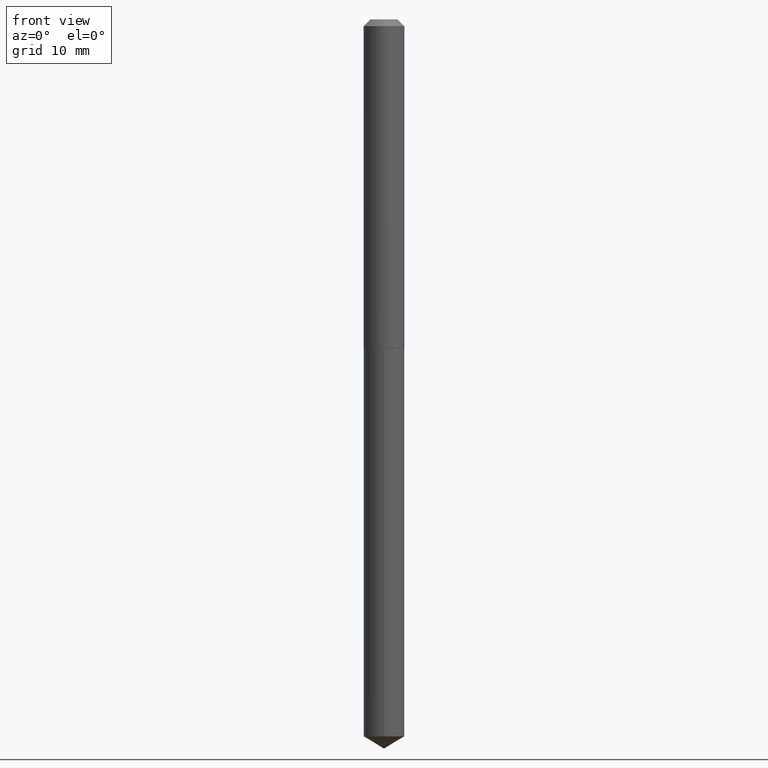
[diagram: clean part render]
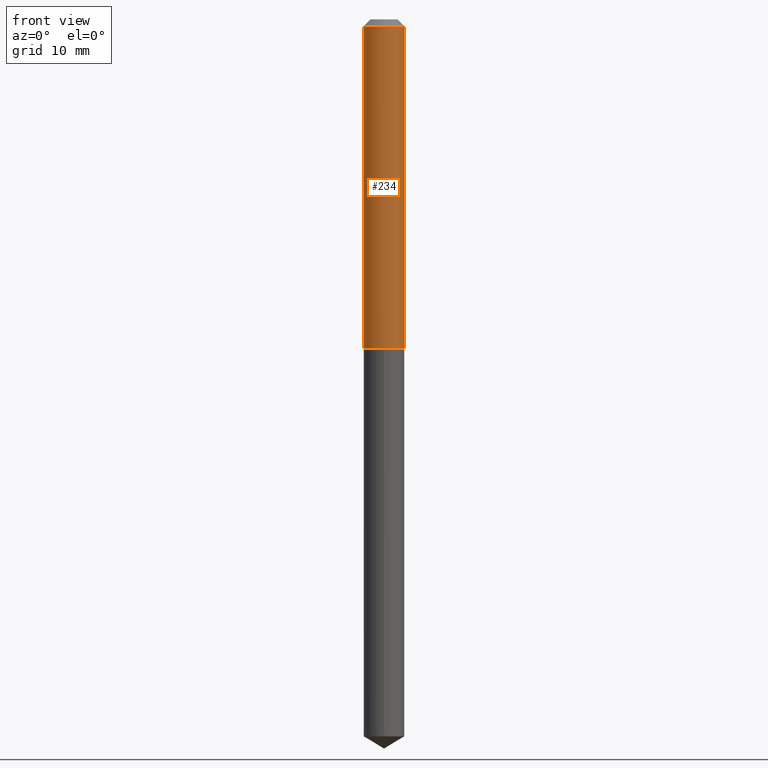
[diagram: same view with one face highlighted and labeled with its STEP entity id]
A machine part, front view. The second image highlights one B-rep face of the part: STEP entity #234.
In plain terms, the highlighted cylindrical surface (edge-blend (fillet) strip) has radius 2.4003 mm, axis along (-0, 0, 1).
Its self-contained STEP definition (entity closure, byte-faithful):
#3 = CARTESIAN_POINT ( 'NONE',  ( -0.09450000000000019496, -4.660378267254071948E-15, -1.527100000000000124 ) ) ;
#5 = EDGE_CURVE ( 'NONE', #169, #362, #150, .T. ) ;
#20 = VERTEX_POINT ( 'NONE', #366 ) ;
#31 = EDGE_CURVE ( 'NONE', #362, #20, #269, .T. ) ;
#40 = DIRECTION ( 'NONE',  ( 1.000000000000000000, -6.982962677686272233E-15, 0.000000000000000000 ) ) ;
#50 = DIRECTION ( 'NONE',  ( 1.000000000000000000, -6.982962677686266711E-15, 4.876176775795935793E-29 ) ) ;
#67 = AXIS2_PLACEMENT_3D ( 'NONE', #98, #195, #40 ) ;
#72 = AXIS2_PLACEMENT_3D ( 'NONE', #233, #304, #190 ) ;
#78 = ORIENTED_EDGE ( 'NONE', *, *, #313, .F. ) ;
#87 = CARTESIAN_POINT ( 'NONE',  ( 0.09450000000000009781, -6.598899730413529023E-16, 4.607987053127163864E-30 ) ) ;
#92 = EDGE_CURVE ( 'NONE', #169, #270, #118, .T. ) ;
#98 = CARTESIAN_POINT ( 'NONE',  ( 3.734475413925322628E-29, -5.331841152547368403E-15, -1.527100000000000124 ) ) ;
#103 = VECTOR ( 'NONE', #212, 39.37007874015748143 ) ;
#118 = LINE ( 'NONE', #245, #349 ) ;
#150 = CIRCLE ( 'NONE', #67, 0.09450000000000019496 ) ;
#168 = AXIS2_PLACEMENT_3D ( 'NONE', #176, #299, #50 ) ;
#169 = VERTEX_POINT ( 'NONE', #3 ) ;
#176 = CARTESIAN_POINT ( 'NONE',  ( 0.000000000000000000, 0.000000000000000000, 0.000000000000000000 ) ) ;
#177 = EDGE_LOOP ( 'NONE', ( #293, #329, #263, #78 ) ) ;
#190 = DIRECTION ( 'NONE',  ( 1.000000000000000000, -6.982962677686266711E-15, 0.000000000000000000 ) ) ;
#195 = DIRECTION ( 'NONE',  ( -2.445468806185136597E-29, 3.491481338843145583E-15, 1.000000000000000000 ) ) ;
#212 = DIRECTION ( 'NONE',  ( -2.445468806185136877E-29, 3.491481338843145188E-15, 1.000000000000000000 ) ) ;
#233 = CARTESIAN_POINT ( 'NONE',  ( 7.642090019328603538E-31, -1.091087918388490390E-16, -0.03125000000000021511 ) ) ;
#234 = ADVANCED_FACE ( 'NONE', ( #287 ), #239, .T. ) ;
#239 = CYLINDRICAL_SURFACE ( 'NONE', #168, 0.09450000000000009781 ) ;
#245 = CARTESIAN_POINT ( 'NONE',  ( -0.09450000000000009781, 6.714628852932953706E-16, -4.648393660290891235E-30 ) ) ;
#263 = ORIENTED_EDGE ( 'NONE', *, *, #31, .T. ) ;
#269 = LINE ( 'NONE', #87, #103 ) ;
#270 = VERTEX_POINT ( 'NONE', #272 ) ;
#272 = CARTESIAN_POINT ( 'NONE',  ( -0.09449999999999998679, -2.049012086899812691E-15, -0.03125000000000021511 ) ) ;
#287 = FACE_OUTER_BOUND ( 'NONE', #177, .T. ) ;
#293 = ORIENTED_EDGE ( 'NONE', *, *, #92, .F. ) ;
#299 = DIRECTION ( 'NONE',  ( -2.445468806185136597E-29, 3.491481338843145583E-15, 1.000000000000000000 ) ) ;
#304 = DIRECTION ( 'NONE',  ( -2.445468806185136597E-29, 3.491481338843145583E-15, 1.000000000000000000 ) ) ;
#313 = EDGE_CURVE ( 'NONE', #270, #20, #376, .T. ) ;
#329 = ORIENTED_EDGE ( 'NONE', *, *, #5, .T. ) ;
#349 = VECTOR ( 'NONE', #353, 39.37007874015748143 ) ;
#353 = DIRECTION ( 'NONE',  ( -2.445468806185136877E-29, 3.491481338843145188E-15, 1.000000000000000000 ) ) ;
#357 = CARTESIAN_POINT ( 'NONE',  ( 0.09450000000000019496, -5.991731125588721996E-15, -1.527100000000000124 ) ) ;
#362 = VERTEX_POINT ( 'NONE', #357 ) ;
#366 = CARTESIAN_POINT ( 'NONE',  ( 0.09449999999999998679, -7.689987648802012141E-16, -0.03125000000000021511 ) ) ;
#376 = CIRCLE ( 'NONE', #72, 0.09449999999999998679 ) ;